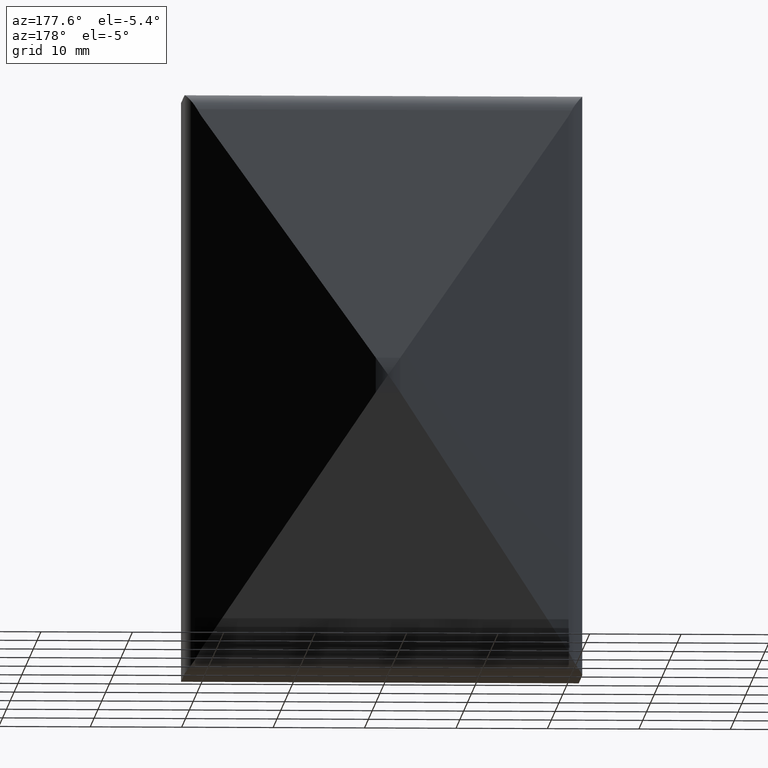
[diagram: clean part render]
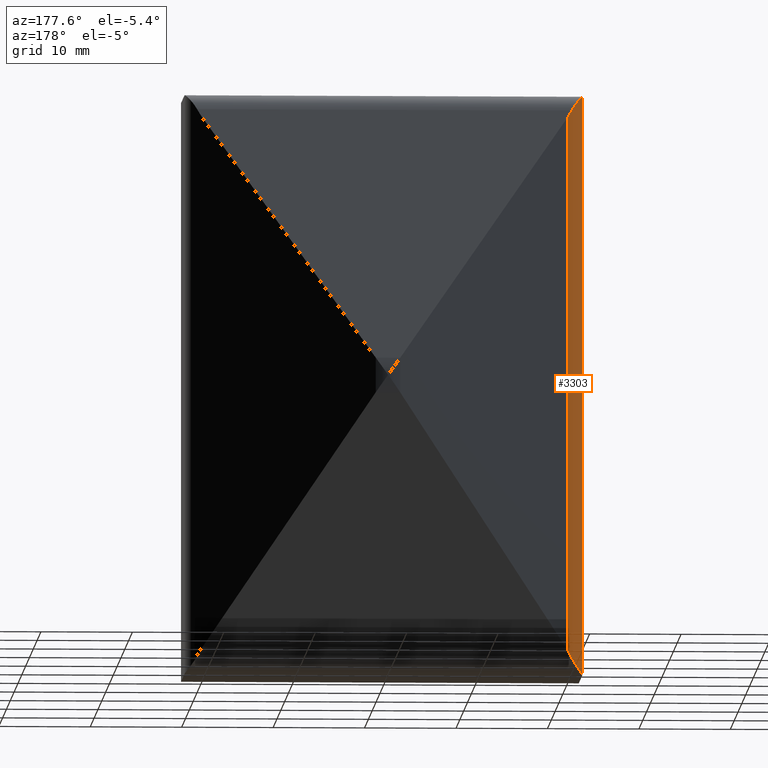
[diagram: same view with one face highlighted and labeled with its STEP entity id]
A machine part, auxiliary view. The second image highlights one B-rep face of the part: STEP entity #3303.
In plain terms, the highlighted cylindrical surface (edge-blend (fillet) strip) has radius 3 mm, axis along (-0, -0, -1).
Its self-contained STEP definition (entity closure, byte-faithful):
#312 = EDGE_CURVE ( 'NONE', #1848, #4046, #2493, .T. ) ;
#424 = EDGE_LOOP ( 'NONE', ( #13118, #4599, #16526, #16429, #8723, #11196 ) ) ;
#716 = CARTESIAN_POINT ( 'NONE',  ( -20.35171063749208642, 11.68523939744726547, 29.74174999506665884 ) ) ;
#746 = CARTESIAN_POINT ( 'NONE',  ( -21.73912020513888166, 9.437667085333220740, 31.73743989076719529 ) ) ;
#810 = DIRECTION ( 'NONE',  ( -1.000000000000000000, 0.000000000000000000, 0.000000000000000000 ) ) ;
#847 = CARTESIAN_POINT ( 'NONE',  ( -20.47409400248482214, 11.59929556294843778, -29.99362796165649314 ) ) ;
#1001 = CARTESIAN_POINT ( 'NONE',  ( -21.74999999999999289, 9.292141904444198630, -31.75000000000000711 ) ) ;
#1848 = VERTEX_POINT ( 'NONE', #4581 ) ;
#1883 = CARTESIAN_POINT ( 'NONE',  ( -21.17603472457994584, 10.91259848261825560, 31.05810743854827294 ) ) ;
#1956 = EDGE_CURVE ( 'NONE', #14599, #4046, #7999, .T. ) ;
#2294 = CARTESIAN_POINT ( 'NONE',  ( -21.75000000000000000, 9.144198849864384471, -31.75000000000000000 ) ) ;
#2493 = LINE ( 'NONE', #9666, #9477 ) ;
#3234 = CARTESIAN_POINT ( 'NONE',  ( -21.43447708438705845, 10.50538176386690026, 31.37949468863881464 ) ) ;
#3303 = ADVANCED_FACE ( 'NONE', ( #14963 ), #5824, .T. ) ;
#3305 = CARTESIAN_POINT ( 'NONE',  ( -21.75000000000000000, 9.144198849864384471, -31.75000000000000000 ) ) ;
#3554 = B_SPLINE_CURVE_WITH_KNOTS ( 'NONE', 3,
 ( #4493, #16271, #14922, #6004, #4611, #1883, #11081, #3234, #16324, #13583, #12454, #746, #13803, #8465 ),
 .UNSPECIFIED., .F., .F.,
 ( 4, 2, 2, 2, 2, 2, 4 ),
 ( 3.878959614448864246E-18, 0.0008711009263770911172, 0.001306651389565637381, 0.001742201852754183752, 0.002613302779131279965, 0.003048853242319828939, 0.003484403705508377479 ),
 .UNSPECIFIED. ) ;
#3716 = CARTESIAN_POINT ( 'NONE',  ( -21.17603472457995295, 10.91259848261823784, -31.05810743854829425 ) ) ;
#3887 =( BOUNDED_CURVE ( )  B_SPLINE_CURVE ( 3, ( #8539, #716, #9956, #9844 ),
 .UNSPECIFIED., .F., .T. ) 
 B_SPLINE_CURVE_WITH_KNOTS ( ( 4, 4 ),
 ( 5.670950234188515182, 5.820357184564478814 ),
 .UNSPECIFIED. ) 
 CURVE ( )  GEOMETRIC_REPRESENTATION_ITEM ( )  RATIONAL_B_SPLINE_CURVE ( ( 1.000000000000000000, 0.9981406618595687341, 0.9981406618595687341, 1.000000000000000000 ) ) 
 REPRESENTATION_ITEM ( '' )  );
#4046 = VERTEX_POINT ( 'NONE', #5917 ) ;
#4493 = CARTESIAN_POINT ( 'NONE',  ( -20.47409400248482214, 11.59929556294843778, 29.99362796165649314 ) ) ;
#4581 = CARTESIAN_POINT ( 'NONE',  ( -20.08944142353318085, 11.82857897811070025, 29.32166073188818700 ) ) ;
#4599 = ORIENTED_EDGE ( 'NONE', *, *, #7815, .T. ) ;
#4611 = CARTESIAN_POINT ( 'NONE',  ( -21.03548481465458764, 11.09084748482010596, 30.87525526806937748 ) ) ;
#4933 = CARTESIAN_POINT ( 'NONE',  ( -20.96204845263348204, 11.17339004244945144, -30.77691566610184282 ) ) ;
#5035 = LINE ( 'NONE', #9295, #6290 ) ;
#5045 = CARTESIAN_POINT ( 'NONE',  ( -21.03548481465460895, 11.09084748482009708, -30.87525526806940590 ) ) ;
#5762 = AXIS2_PLACEMENT_3D ( 'NONE', #12362, #8634, #810 ) ;
#5824 = CYLINDRICAL_SURFACE ( 'NONE', #5762, 3.000000000000002665 ) ;
#5917 = CARTESIAN_POINT ( 'NONE',  ( -20.08944142353318085, 11.82857897811070025, -29.32166073188818700 ) ) ;
#6004 = CARTESIAN_POINT ( 'NONE',  ( -20.96204845263346783, 11.17339004244945855, 30.77691566610182505 ) ) ;
#6213 = CARTESIAN_POINT ( 'NONE',  ( -21.54750273281010209, 10.26246227579282966, -31.51337929205955035 ) ) ;
#6290 = VECTOR ( 'NONE', #10783, 1000.000000000000000 ) ;
#7551 = CARTESIAN_POINT ( 'NONE',  ( -21.73912020513888876, 9.437667085333165673, -31.73743989076718819 ) ) ;
#7609 = CARTESIAN_POINT ( 'NONE',  ( -21.69696672693703832, 9.724156017528274631, -31.68851122866880843 ) ) ;
#7638 = CARTESIAN_POINT ( 'NONE',  ( -20.08944142353318085, 11.82857897811070025, -29.32166073188818700 ) ) ;
#7656 = CARTESIAN_POINT ( 'NONE',  ( -20.59739694597345405, 11.51270595357599902, -30.24739851848255867 ) ) ;
#7710 = CARTESIAN_POINT ( 'NONE',  ( -21.24358489718665410, 10.81657542109936010, -31.14322262667597840 ) ) ;
#7805 = CARTESIAN_POINT ( 'NONE',  ( -20.35171063749208287, 11.68523939744726547, -29.74174999506666595 ) ) ;
#7815 = EDGE_CURVE ( 'NONE', #14599, #11038, #16282, .T. ) ;
#7999 =( BOUNDED_CURVE ( )  B_SPLINE_CURVE ( 3, ( #12759, #7805, #14165, #7638 ),
 .UNSPECIFIED., .F., .F. ) 
 B_SPLINE_CURVE_WITH_KNOTS ( ( 4, 4 ),
 ( 2.529357580598722954, 2.678764530974685698 ),
 .UNSPECIFIED. ) 
 CURVE ( )  GEOMETRIC_REPRESENTATION_ITEM ( )  RATIONAL_B_SPLINE_CURVE ( ( 1.000000000000000000, 0.9981406618595687341, 0.9981406618595687341, 1.000000000000000000 ) ) 
 REPRESENTATION_ITEM ( '' )  );
#8465 = CARTESIAN_POINT ( 'NONE',  ( -21.74999999999999289, 9.144198849864443090, 31.75000000000000000 ) ) ;
#8539 = CARTESIAN_POINT ( 'NONE',  ( -20.47409400248482214, 11.59929556294843778, 29.99362796165649314 ) ) ;
#8634 = DIRECTION ( 'NONE',  ( -0.000000000000000000, -0.000000000000000000, -1.000000000000000000 ) ) ;
#8723 = ORIENTED_EDGE ( 'NONE', *, *, #11981, .T. ) ;
#8834 = CARTESIAN_POINT ( 'NONE',  ( -21.66549820078079236, 9.864618101901871938, -31.65191004675811115 ) ) ;
#9277 = CARTESIAN_POINT ( 'NONE',  ( -21.74999999999999289, 9.144198849864443090, 31.75000000000000000 ) ) ;
#9295 = CARTESIAN_POINT ( 'NONE',  ( -21.74999999999999289, 9.144198849864443090, 31.75000000000000000 ) ) ;
#9477 = VECTOR ( 'NONE', #10702, 1000.000000000000000 ) ;
#9666 = CARTESIAN_POINT ( 'NONE',  ( -20.08944142353318085, 11.82857897811070025, 31.75000000000000000 ) ) ;
#9718 = CARTESIAN_POINT ( 'NONE',  ( -20.47409400248482214, 11.59929556294843778, 29.99362796165649314 ) ) ;
#9844 = CARTESIAN_POINT ( 'NONE',  ( -20.08944142353318085, 11.82857897811070025, 29.32166073188818700 ) ) ;
#9956 = CARTESIAN_POINT ( 'NONE',  ( -20.22325426734646925, 11.76180957234796409, 29.51734367124037561 ) ) ;
#10258 = CARTESIAN_POINT ( 'NONE',  ( -20.47409400248482214, 11.59929556294843778, -29.99362796165649314 ) ) ;
#10702 = DIRECTION ( 'NONE',  ( -0.000000000000000000, -0.000000000000000000, -1.000000000000000000 ) ) ;
#10783 = DIRECTION ( 'NONE',  ( -0.000000000000000000, -0.000000000000000000, -1.000000000000000000 ) ) ;
#11038 = VERTEX_POINT ( 'NONE', #3305 ) ;
#11081 = CARTESIAN_POINT ( 'NONE',  ( -21.24358489718663634, 10.81657542109937609, 31.14322262667596419 ) ) ;
#11196 = ORIENTED_EDGE ( 'NONE', *, *, #312, .T. ) ;
#11826 = VERTEX_POINT ( 'NONE', #9277 ) ;
#11981 = EDGE_CURVE ( 'NONE', #14461, #1848, #3887, .T. ) ;
#12362 = CARTESIAN_POINT ( 'NONE',  ( -18.74999999999998934, 9.144198849864443090, 31.75000000000000000 ) ) ;
#12454 = CARTESIAN_POINT ( 'NONE',  ( -21.69696672693703121, 9.724156017528324369, 31.68851122866880132 ) ) ;
#12759 = CARTESIAN_POINT ( 'NONE',  ( -20.47409400248482214, 11.59929556294843778, -29.99362796165649314 ) ) ;
#13118 = ORIENTED_EDGE ( 'NONE', *, *, #1956, .F. ) ;
#13395 = EDGE_CURVE ( 'NONE', #14461, #11826, #3554, .T. ) ;
#13583 = CARTESIAN_POINT ( 'NONE',  ( -21.66549820078078881, 9.864618101901918124, 31.65191004675810404 ) ) ;
#13684 = EDGE_CURVE ( 'NONE', #11826, #11038, #5035, .T. ) ;
#13803 = CARTESIAN_POINT ( 'NONE',  ( -21.75000000000000355, 9.292141904444196854, 31.75000000000000711 ) ) ;
#14007 = CARTESIAN_POINT ( 'NONE',  ( -21.43447708438706911, 10.50538176386687184, -31.37949468863883595 ) ) ;
#14165 = CARTESIAN_POINT ( 'NONE',  ( -20.22325426734646925, 11.76180957234796409, -29.51734367124038272 ) ) ;
#14236 = CARTESIAN_POINT ( 'NONE',  ( -20.74372672026938602, 11.39545511611554218, -30.46933628281855988 ) ) ;
#14461 = VERTEX_POINT ( 'NONE', #9718 ) ;
#14599 = VERTEX_POINT ( 'NONE', #847 ) ;
#14922 = CARTESIAN_POINT ( 'NONE',  ( -20.74372672026938602, 11.39545511611554751, 30.46933628281855633 ) ) ;
#14963 = FACE_OUTER_BOUND ( 'NONE', #424, .T. ) ;
#16271 = CARTESIAN_POINT ( 'NONE',  ( -20.59739694597345405, 11.51270595357601145, 30.24739851848256933 ) ) ;
#16282 = B_SPLINE_CURVE_WITH_KNOTS ( 'NONE', 3,
 ( #10258, #7656, #14236, #4933, #5045, #3716, #7710, #14007, #6213, #8834, #7609, #7551, #1001, #2294 ),
 .UNSPECIFIED., .F., .F.,
 ( 4, 2, 2, 2, 2, 2, 4 ),
 ( 5.204170427930421283E-18, 0.0008711009263771126929, 0.001306651389565668822, 0.001742201852754224735, 0.002613302779131327670, 0.003048853242319881415, 0.003484403705508435159 ),
 .UNSPECIFIED. ) ;
#16324 = CARTESIAN_POINT ( 'NONE',  ( -21.54750273281009498, 10.26246227579286341, 31.51337929205952904 ) ) ;
#16429 = ORIENTED_EDGE ( 'NONE', *, *, #13395, .F. ) ;
#16526 = ORIENTED_EDGE ( 'NONE', *, *, #13684, .F. ) ;